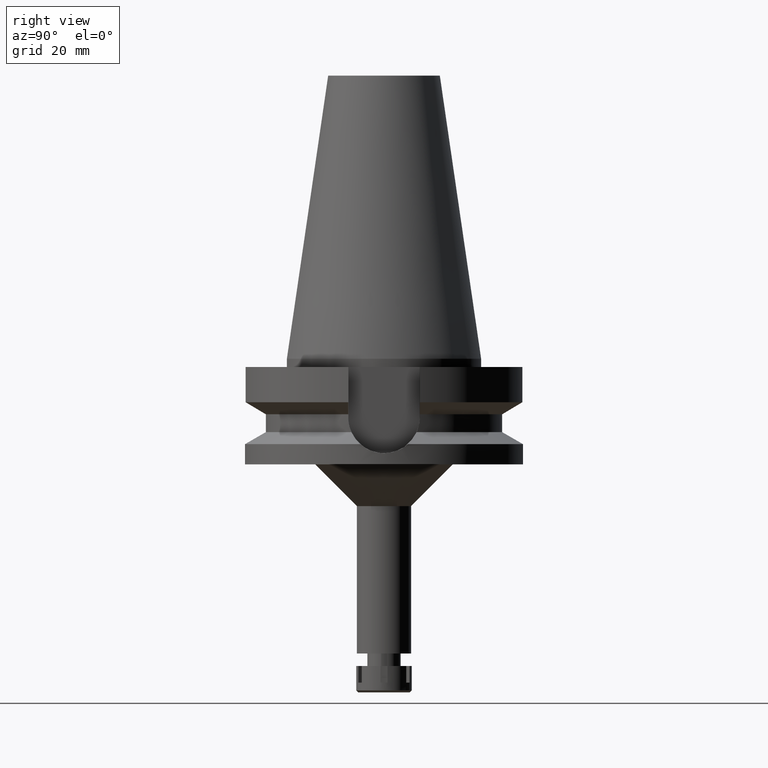
[diagram: clean part render]
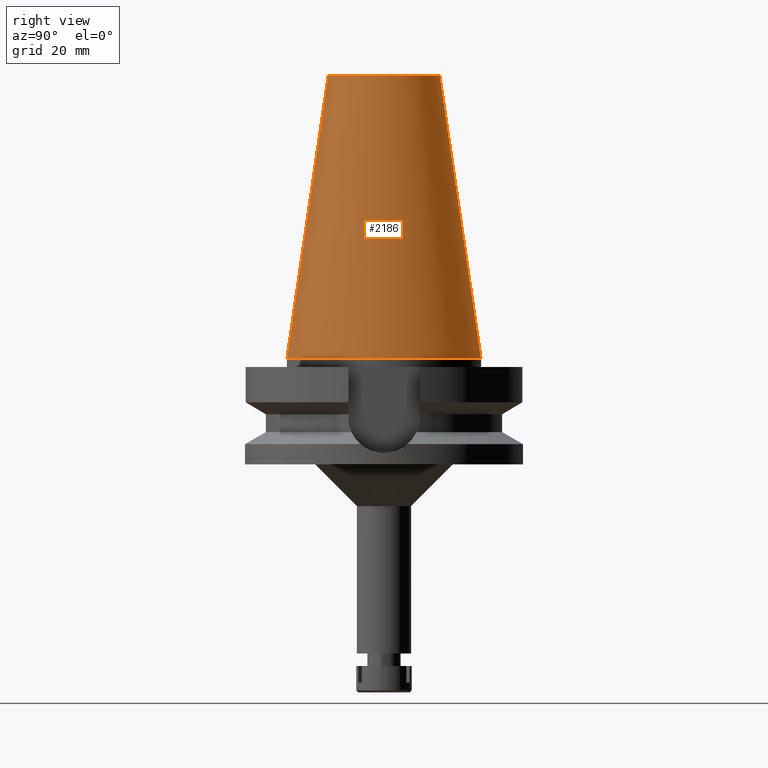
[diagram: same view with one face highlighted and labeled with its STEP entity id]
A machine part, right view. The second image highlights one B-rep face of the part: STEP entity #2186.
In plain terms, the highlighted conical surface has half-angle 8.297 deg.
Its self-contained STEP definition (entity closure, byte-faithful):
#211 = DIRECTION ( 'NONE',  ( 0.0000000000000000000, 0.0000000000000000000, -1.000000000000000000 ) ) ;
#225 = CARTESIAN_POINT ( 'NONE',  ( 0.0000000000000000000, 1.847992019912999597E-14, 50.89999999999999858 ) ) ;
#322 = CIRCLE ( 'NONE', #2402, 20.07942971896000017 ) ;
#367 = ORIENTED_EDGE ( 'NONE', *, *, #1653, .F. ) ;
#508 = EDGE_LOOP ( 'NONE', ( #2691, #1170, #2469, #367 ) ) ;
#523 = CARTESIAN_POINT ( 'NONE',  ( 0.0000000000000000000, 34.92499999999999716, 4.902744876745000264E-13 ) ) ;
#550 = CARTESIAN_POINT ( 'NONE',  ( 0.0000000000000000000, 20.07942971896000017, 101.7999999999999972 ) ) ;
#594 = VERTEX_POINT ( 'NONE', #523 ) ;
#823 = LINE ( 'NONE', #2853, #1879 ) ;
#907 = VERTEX_POINT ( 'NONE', #3473 ) ;
#1170 = ORIENTED_EDGE ( 'NONE', *, *, #2203, .T. ) ;
#1180 = DIRECTION ( 'NONE',  ( 0.0000000000000000000, 0.1443043893538948075, -0.9895333461855641000 ) ) ;
#1206 = DIRECTION ( 'NONE',  ( 0.0000000000000000000, 1.000000000000000000, 0.0000000000000000000 ) ) ;
#1460 = EDGE_CURVE ( 'NONE', #907, #1725, #322, .T. ) ;
#1587 = DIRECTION ( 'NONE',  ( 0.0000000000000000000, 0.0000000000000000000, -1.000000000000000000 ) ) ;
#1631 = DIRECTION ( 'NONE',  ( 0.0000000000000000000, 0.0000000000000000000, -1.000000000000000000 ) ) ;
#1637 = AXIS2_PLACEMENT_3D ( 'NONE', #3049, #1631, #2773 ) ;
#1652 = DIRECTION ( 'NONE',  ( 0.0000000000000000000, -1.000000000000000000, 0.0000000000000000000 ) ) ;
#1653 = EDGE_CURVE ( 'NONE', #907, #594, #3169, .T. ) ;
#1725 = VERTEX_POINT ( 'NONE', #2284 ) ;
#1805 = CARTESIAN_POINT ( 'NONE',  ( 0.0000000000000000000, -34.92499999999999716, 4.902744876745000264E-13 ) ) ;
#1866 = CARTESIAN_POINT ( 'NONE',  ( 0.0000000000000000000, 1.847992019912999597E-14, 101.7999999999999972 ) ) ;
#1879 = VECTOR ( 'NONE', #1910, 1000.000000000000114 ) ;
#1910 = DIRECTION ( 'NONE',  ( 0.0000000000000000000, -0.1443043893538948075, -0.9895333461855641000 ) ) ;
#2078 = VERTEX_POINT ( 'NONE', #1805 ) ;
#2186 = ADVANCED_FACE ( 'NONE', ( #2524 ), #2288, .T. ) ;
#2203 = EDGE_CURVE ( 'NONE', #1725, #2078, #823, .T. ) ;
#2250 = EDGE_CURVE ( 'NONE', #594, #2078, #3196, .T. ) ;
#2284 = CARTESIAN_POINT ( 'NONE',  ( 0.0000000000000000000, -20.07942971896000017, 101.7999999999999972 ) ) ;
#2288 = CONICAL_SURFACE ( 'NONE', #2957, 27.50221485948000222, 0.1448099680379422438 ) ;
#2402 = AXIS2_PLACEMENT_3D ( 'NONE', #1866, #1587, #1206 ) ;
#2469 = ORIENTED_EDGE ( 'NONE', *, *, #2250, .F. ) ;
#2524 = FACE_OUTER_BOUND ( 'NONE', #508, .T. ) ;
#2691 = ORIENTED_EDGE ( 'NONE', *, *, #1460, .T. ) ;
#2771 = VECTOR ( 'NONE', #1180, 1000.000000000000114 ) ;
#2773 = DIRECTION ( 'NONE',  ( 0.0000000000000000000, 1.000000000000000000, 0.0000000000000000000 ) ) ;
#2853 = CARTESIAN_POINT ( 'NONE',  ( 0.0000000000000000000, -20.07942971896000017, 101.7999999999999972 ) ) ;
#2957 = AXIS2_PLACEMENT_3D ( 'NONE', #225, #211, #1652 ) ;
#3049 = CARTESIAN_POINT ( 'NONE',  ( 0.0000000000000000000, 1.847992019912999597E-14, 3.979039320256999774E-13 ) ) ;
#3169 = LINE ( 'NONE', #550, #2771 ) ;
#3196 = CIRCLE ( 'NONE', #1637, 34.92499999999999716 ) ;
#3473 = CARTESIAN_POINT ( 'NONE',  ( 0.0000000000000000000, 20.07942971896000017, 101.7999999999999972 ) ) ;